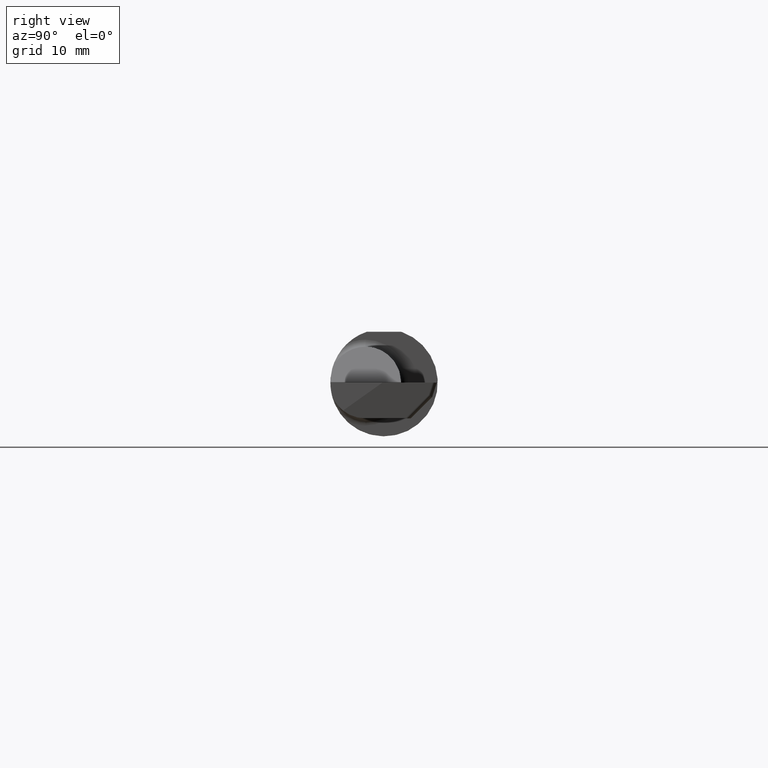
[diagram: clean part render]
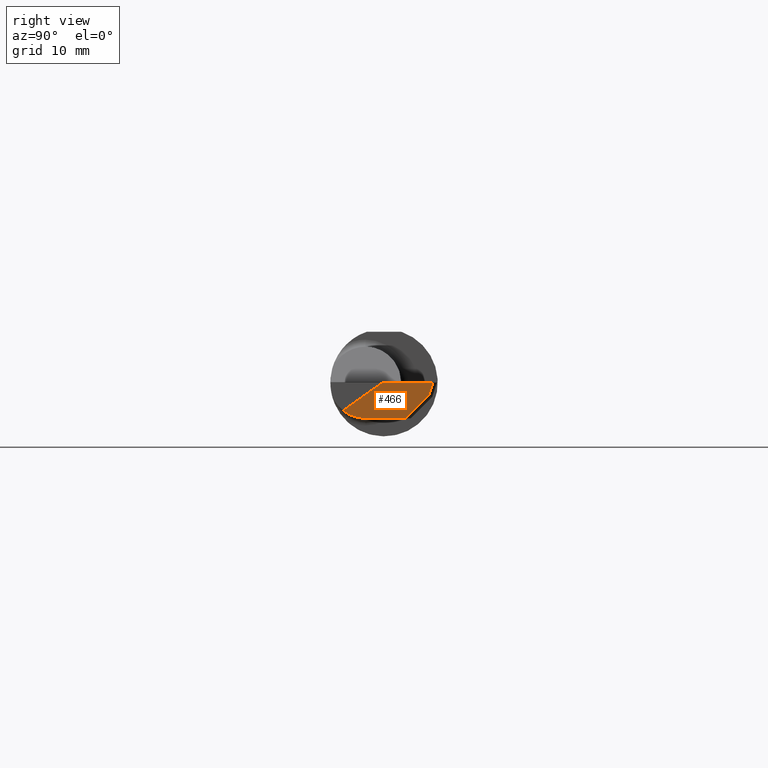
[diagram: same view with one face highlighted and labeled with its STEP entity id]
A machine part, right view. The second image highlights one B-rep face of the part: STEP entity #466.
In plain terms, the highlighted planar face has unit normal (-0.9888, -0.0865, 0.1219).
Its self-contained STEP definition (entity closure, byte-faithful):
#30 = VERTEX_POINT ( 'NONE', #915 ) ;
#42 = VERTEX_POINT ( 'NONE', #969 ) ;
#129 = EDGE_LOOP ( 'NONE', ( #285, #682, #626, #516, #676, #280 ) ) ;
#132 = VECTOR ( 'NONE', #389, 39.37007874015748854 ) ;
#142 = VERTEX_POINT ( 'NONE', #469 ) ;
#171 = DIRECTION ( 'NONE',  ( 0.000000000000000000, -0.8154497401906277698, -0.5788278856646746906 ) ) ;
#199 = CARTESIAN_POINT ( 'NONE',  ( 2.489842622564257368, -0.06535000000000003306, -0.1249999999999999861 ) ) ;
#217 = CARTESIAN_POINT ( 'NONE',  ( 2.489919779257633081, -0.06623190504079595753, -0.1249999999999999861 ) ) ;
#219 = CARTESIAN_POINT ( 'NONE',  ( 2.492339414901687533, -0.09388846700596117922, -0.1250000000000000000 ) ) ;
#222 = VERTEX_POINT ( 'NONE', #519 ) ;
#236 = CARTESIAN_POINT ( 'NONE',  ( 2.489842622564257368, -0.06535000000000003306, -0.1249999999999999861 ) ) ;
#240 = CARTESIAN_POINT ( 'NONE',  ( 2.484965441901290539, 0.1720508184452588241, 0.003943109996817505472 ) ) ;
#251 = DIRECTION ( 'NONE',  ( -0.9887692138764513361, -0.08650609705762295210, 0.1218693434051477814 ) ) ;
#256 = CARTESIAN_POINT ( 'NONE',  ( 2.484591529445554503, 0.1707696243428800109, 0.000000000000000000 ) ) ;
#263 = DIRECTION ( 'NONE',  ( 0.1223279114424238589, 0.000000000000000000, 0.9924897390311572254 ) ) ;
#280 = ORIENTED_EDGE ( 'NONE', *, *, #306, .T. ) ;
#285 = ORIENTED_EDGE ( 'NONE', *, *, #631, .F. ) ;
#306 = EDGE_CURVE ( 'NONE', #222, #986, #917, .T. ) ;
#338 = LINE ( 'NONE', #487, #681 ) ;
#370 = DIRECTION ( 'NONE',  ( 0.08982109674372405761, 0.3077679217474511009, 0.9472122660328092802 ) ) ;
#386 = LINE ( 'NONE', #217, #132 ) ;
#389 = DIRECTION ( 'NONE',  ( 0.08715574274765187923, -0.9961946980917459893, 0.000000000000000000 ) ) ;
#414 = VECTOR ( 'NONE', #964, 39.37007874015748854 ) ;
#420 = FACE_OUTER_BOUND ( 'NONE', #129, .T. ) ;
#428 = VECTOR ( 'NONE', #514, 39.37007874015748854 ) ;
#466 = ADVANCED_FACE ( 'NONE', ( #420 ), #951, .F. ) ;
#469 = CARTESIAN_POINT ( 'NONE',  ( 2.477519533400941221, 0.07550355366830234505, -0.1249999999999999861 ) ) ;
#477 = VECTOR ( 'NONE', #370, 39.37007874015747433 ) ;
#487 = CARTESIAN_POINT ( 'NONE',  ( 2.500000000000000000, -0.001792473208543269182, 0.002525227012044893408 ) ) ;
#514 = DIRECTION ( 'NONE',  ( 0.02528153024484488046, 0.7068807693764396216, 0.7068807693764568301 ) ) ;
#516 = ORIENTED_EDGE ( 'NONE', *, *, #960, .T. ) ;
#519 = CARTESIAN_POINT ( 'NONE',  ( 2.500000000000000000, -0.1431654907182394187, -0.09782509598400397632 ) ) ;
#524 = CARTESIAN_POINT ( 'NONE',  ( 2.481707714926153052, 0.1926066305057292649, -0.007896923162570167534 ) ) ;
#566 = EDGE_CURVE ( 'NONE', #142, #30, #819, .T. ) ;
#607 = LINE ( 'NONE', #240, #477 ) ;
#626 = ORIENTED_EDGE ( 'NONE', *, *, #674, .T. ) ;
#631 = EDGE_CURVE ( 'NONE', #142, #986, #386, .T. ) ;
#644 = CARTESIAN_POINT ( 'NONE',  ( 2.483377153930075742, 0.1846499999999999808, 0.000000000000000000 ) ) ;
#646 = CARTESIAN_POINT ( 'NONE',  ( 2.483377153930075742, 0.1846499999999999808, 0.000000000000000000 ) ) ;
#674 = EDGE_CURVE ( 'NONE', #30, #811, #607, .T. ) ;
#676 = ORIENTED_EDGE ( 'NONE', *, *, #825, .T. ) ;
#681 = VECTOR ( 'NONE', #171, 39.37007874015748854 ) ;
#682 = ORIENTED_EDGE ( 'NONE', *, *, #566, .T. ) ;
#811 = VERTEX_POINT ( 'NONE', #256 ) ;
#819 = LINE ( 'NONE', #524, #428 ) ;
#825 = EDGE_CURVE ( 'NONE', #42, #222, #338, .T. ) ;
#915 = CARTESIAN_POINT ( 'NONE',  ( 2.480414881131471461, 0.1564585279735821732, -0.04404502569471811790 ) ) ;
#917 =( BOUNDED_CURVE ( )  B_SPLINE_CURVE ( 3, ( #921, #932, #219, #236 ),
 .UNSPECIFIED., .F., .T. ) 
 B_SPLINE_CURVE_WITH_KNOTS ( ( 4, 4 ),
 ( 4.993931103440154118, 5.665894734938331290 ),
 .UNSPECIFIED. ) 
 CURVE ( )  GEOMETRIC_REPRESENTATION_ITEM ( )  RATIONAL_B_SPLINE_CURVE ( ( 1.000000000000000000, 0.9627247091652257893, 0.9627247091652257893, 1.000000000000000000 ) ) 
 REPRESENTATION_ITEM ( '' )  );
#921 = CARTESIAN_POINT ( 'NONE',  ( 2.500000000000000000, -0.1431654907182394187, -0.09782509598400397632 ) ) ;
#926 = AXIS2_PLACEMENT_3D ( 'NONE', #644, #251, #263 ) ;
#932 = CARTESIAN_POINT ( 'NONE',  ( 2.495856300306567466, -0.1208312645254836365, -0.1155909744993251775 ) ) ;
#951 = PLANE ( 'NONE',  #926 ) ;
#960 = EDGE_CURVE ( 'NONE', #811, #42, #987, .T. ) ;
#964 = DIRECTION ( 'NONE',  ( 0.08715574274765187923, -0.9961946980917459893, 0.000000000000000000 ) ) ;
#969 = CARTESIAN_POINT ( 'NONE',  ( 2.500000000000000000, -0.005350000000000019670, 0.000000000000000000 ) ) ;
#986 = VERTEX_POINT ( 'NONE', #199 ) ;
#987 = LINE ( 'NONE', #646, #414 ) ;